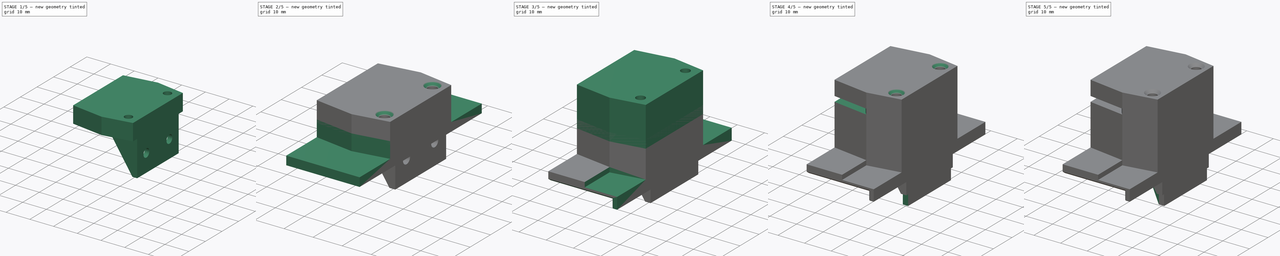
[diagram: build sequence overview — one tinted view per stage of 5, left to right]
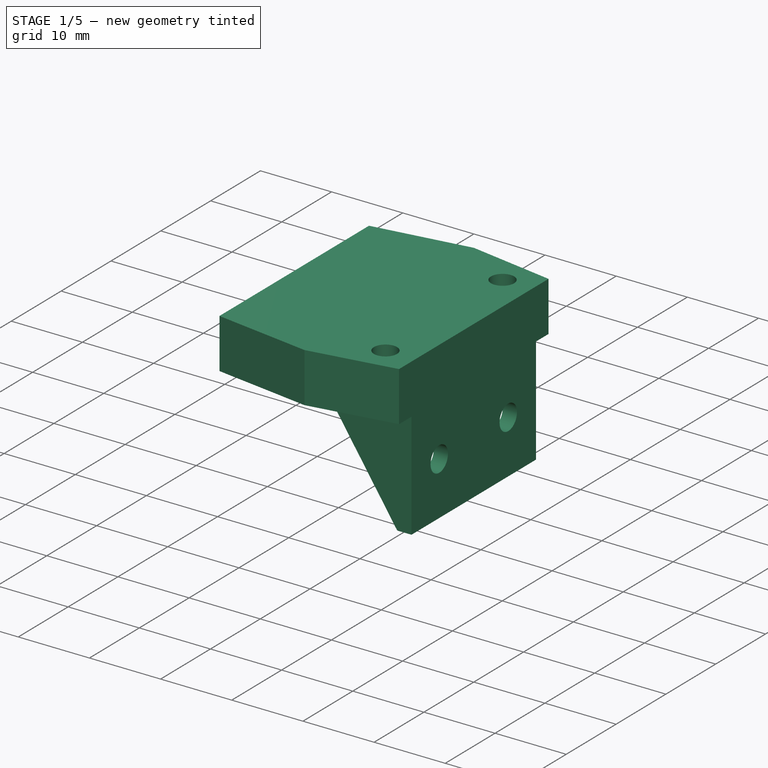
[diagram: stage 1 of 5 — iso view after this stage's code; geometry added in this stage tinted green]
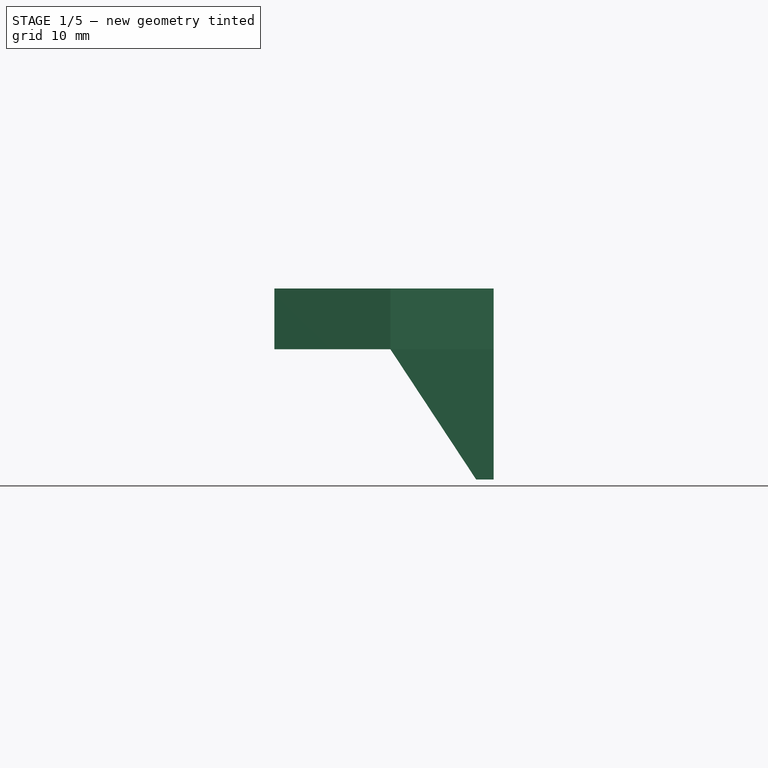
[diagram: stage 1 of 5 — front view after this stage's code; geometry added in this stage tinted green]
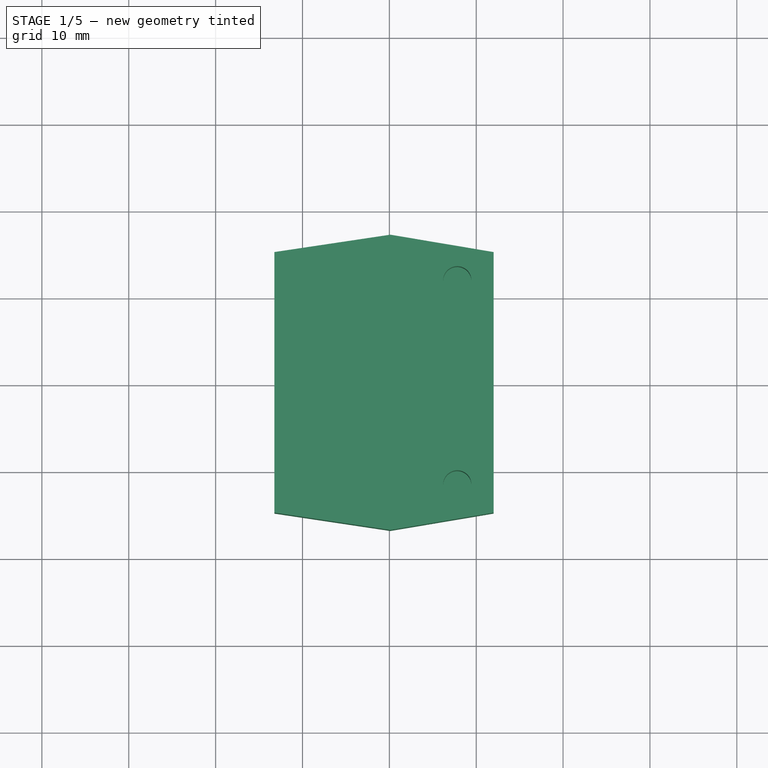
[diagram: stage 1 of 5 — top view after this stage's code; geometry added in this stage tinted green]
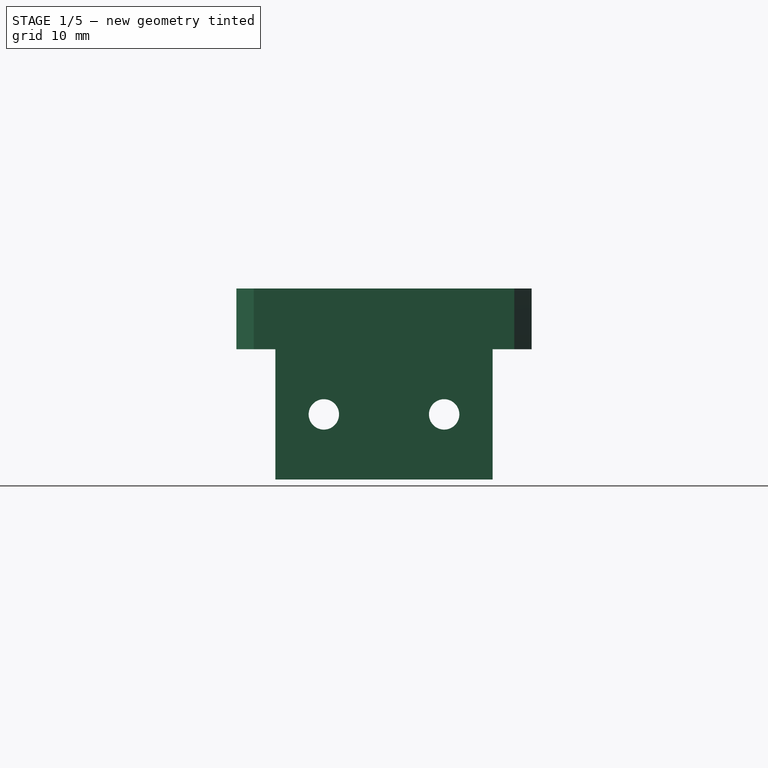
[diagram: stage 1 of 5 — right view after this stage's code; geometry added in this stage tinted green]
FCSTD DOCUMENT  (FreeCAD 0.22R36331 (Git))
Label: ender 3 v3 se kusba mount
License: All rights reserved
LicenseURL: https://en.wikipedia.org/wiki/All_rights_reserved
objects: Sketcher::SketchObject×19, PartDesign::Pad×10, PartDesign::Pocket×9, PartDesign::Chamfer×6, PartDesign::Body×4, PartDesign::Mirrored×2, PartDesign::ShapeBinder×2
note: 77 computed .brp shape members not serialized (recipe doc carries the construction recipe); baked Part::Feature solids carry a one-line shape summary decoded from their .brp

FEATURE [PartDesign::Body] Body  label="SimpleBed"
  Group = -> [ShapeBinder,Sketch025,Pad004,Sketch026,Pad005,ShapeBinder001,Sketch027,Pocket005,Sketch028,Pad006,Sketch029,Pocket006,Chamfer003,Chamfer004]
  Origin = -> Origin
  Placement = pos=(-1e-15,-3,0) rot=(0,0,1;1.5708rad)
  Tip = -> Chamfer004
FEATURE [Sketcher::SketchObject] Sketch030
  AttachmentSupport = -> [YZ_Plane003]
  FullyConstrained = true
  MapMode = 5
  Placement = pos=(0,0,0) rot=(0.57735,0.57735,0.57735;2.0944rad)
  sketch-geometry (5):
    g0: LineSegment StartX=-12.5 StartY=7.5 StartZ=0 EndX=-12.5 EndY=-7.5 EndZ=0
    g1: LineSegment StartX=-12.5 StartY=-7.5 StartZ=0 EndX=12.5 EndY=-7.5 EndZ=0
    g2: LineSegment StartX=12.5 StartY=-7.5 StartZ=0 EndX=12.5 EndY=7.5 EndZ=0
    g3: LineSegment StartX=12.5 StartY=7.5 StartZ=0 EndX=-12.5 EndY=7.5 EndZ=0
    g4: GeomPoint X=0 Y=0 Z=0
  constraints (12):
    c: Coincident(g0,g1)
    c: Coincident(g1,g2)
    c: Coincident(g2,g3)
    c: Coincident(g3,g0)
    c: Vertical(g0)
    c: Vertical(g2)
    c: Horizontal(g1)
    c: Horizontal(g3)
    c: Symmetric(g2,g0,g4)
    c: Coincident(g4,g-1)
    c: DistanceX(g1,g1) = 25
    c: DistanceY(g2,g2) = 15
FEATURE [PartDesign::Pad] Pad007
  Direction = (1,0,0)
  Length = 2
  Length2 = 10
  Placement = pos=(0,0,0) rot=(1,1,1;2.0944rad)
  Profile = -> Sketch030
  ReferenceAxis = -> Sketch030 [N_Axis]
  Suppressed = false
  Type = 0
FEATURE [Sketcher::SketchObject] Sketch033
  AttachmentSupport = -> [Pad007]
  ExternalGeometry = -> [Pad007]
  FullyConstrained = false
  MapMode = 5
  Placement = pos=(-8e-16,2.5e-15,7.5) rot=(0,0,-1;1.5708rad)
  sketch-geometry (6):
    g0: LineSegment StartX=-15 StartY=-23.231 StartZ=0 EndX=15 EndY=-23.231 EndZ=0
    g1: LineSegment StartX=15 StartY=2 StartZ=0 EndX=-15 EndY=2 EndZ=0
    g2: LineSegment StartX=-17 StartY=-9.88 StartZ=0 EndX=-15 EndY=-23.231 EndZ=0
    g3: LineSegment StartX=17 StartY=-9.88 StartZ=0 EndX=15 EndY=-23.231 EndZ=0
    g4: LineSegment StartX=-15 StartY=2 StartZ=0 EndX=-17 EndY=-9.88 EndZ=0
    g5: LineSegment StartX=15 StartY=2 StartZ=0 EndX=17 EndY=-9.88 EndZ=0
  constraints (8):
    c: Coincident(g0,g2)
    c: Distance(g2,g2) = 13.5
    c: Distance(g3,g3) = 13.5
    c: Coincident(g0,g3)
    c: DistanceX(g0,g0) = 30
    c: Symmetric(g0,g0,g-2)
    c: Coincident(g1,g4)
    c: Coincident(g1,g5)
FEATURE [PartDesign::Pad] Pad008
  BaseFeature = -> Pad007
  Direction = (0,0,1)
  Length = 7
  Length2 = 10
  Placement = pos=(0,0,0) rot=(1,1,1;2.0944rad)
  Profile = -> Sketch033
  ReferenceAxis = -> Sketch033 [N_Axis]
  Suppressed = false
  Type = 0
FEATURE [Sketcher::SketchObject] Sketch031
  AttachmentSupport = -> [Pad008]
  FullyConstrained = true
  MapMode = 5
  Placement = pos=(0,0,0) rot=(0.57735,0.57735,-0.57735;4.18879rad)
  sketch-geometry (2):
    g0: Circle CenterX=-6.925 CenterY=0 CenterZ=0 NormalX=0 NormalY=0 NormalZ=1 AngleXU=0 Radius=1.75
    g1: Circle CenterX=6.925 CenterY=0 CenterZ=0 NormalX=0 NormalY=0 NormalZ=1 AngleXU=0 Radius=1.75
  constraints (5):
    c: PointOnObject(g0,g-1)
    c: DistanceX(g0,g1) = 13.85
    c: Equal(g1,g0)
    c: Diameter(g1) = 3.5
    c: Symmetric(g0,g1,g-2)
FEATURE [Sketcher::SketchObject] Sketch032
  AttachmentSupport = -> [Pad008]
  ExternalGeometry = -> [Pad008]
  FullyConstrained = false
  MapMode = 5
  Placement = pos=(-4.8e-15,1.6e-15,14.5) rot=(0,0,-1;1.5708rad)
  sketch-geometry (4):
    g0: Circle CenterX=11.75 CenterY=-2.18 CenterZ=0 NormalX=0 NormalY=0 NormalZ=1 AngleXU=0 Radius=1.625
    g1: Circle CenterX=-11.75 CenterY=-2.18 CenterZ=0 NormalX=0 NormalY=0 NormalZ=1 AngleXU=0 Radius=1.625
    g2: GeomPoint X=0 Y=-2.18 Z=0
    g3: GeomPoint X=0 Y=18 Z=0
  constraints (8):
    c: Equal(g0,g1)
    c: Diameter(g1) = 3.25
    c: DistanceX(g1,g0) = 23.5
    c: Symmetric(g1,g0,g2)
    c: Vertical(g2,g3)
    c: Horizontal(g0,g2)
    c: DistanceY(g0,g-3) = 4.18
    c: PointOnObject(g2,g-2)
FEATURE [PartDesign::Pocket] Pocket007
  BaseFeature = -> Pad008
  Direction = (0,0,-1)
  Length = 6.5
  Length2 = 5
  Placement = pos=(0,0,0) rot=(1,1,1;2.0944rad)
  Profile = -> Sketch032
  ReferenceAxis = -> Sketch032 [N_Axis]
  Suppressed = false
  Type = 0
FEATURE [PartDesign::Pocket] Pocket008
  BaseFeature = -> Pocket007
  Direction = (1,0,0)
  Length = 5
  Length2 = 5
  Placement = pos=(0,0,0) rot=(1,1,1;2.0944rad)
  Profile = -> Sketch031
  ReferenceAxis = -> Sketch031 [N_Axis]
  Suppressed = false
  Type = 0
FEATURE [Sketcher::SketchObject] Sketch034
  AttachmentSupport = -> [Pocket008]
  ExternalGeometry = -> [Sketch033,Pocket008]
  FullyConstrained = true
  MapMode = 5
  Placement = pos=(-2.8e-15,-12.5,1.39e-14) rot=(0.57735,0.57735,-0.57735;2.0944rad)
  sketch-geometry (3):
    g0: LineSegment StartX=-7.5 StartY=-9.88 StartZ=0 EndX=7.5 EndY=1.42e-14 EndZ=0
    g1: LineSegment StartX=-7.5 StartY=1.36e-14 StartZ=0 EndX=-7.5 EndY=-9.88 EndZ=0
    g2: LineSegment StartX=-7.5 StartY=1.36e-14 StartZ=0 EndX=7.5 EndY=1.36e-14 EndZ=0
  constraints (7):
    c: Coincident(g0,g-3)
    c: PointOnObject(g1,g-3)
    c: Coincident(g1,g0)
    c: Coincident(g2,g1)
    c: Horizontal(g2)
    c: Coincident(g-4,g0)
    c: Coincident(g2,g0)
FEATURE [PartDesign::Pad] Pad009
  BaseFeature = -> Pocket008
  Direction = (-1e-16,-1,1e-15)
  Length = 2
  Length2 = 10
  Placement = pos=(0,0,0) rot=(1,1,1;2.0944rad)
  Profile = -> Sketch034
  ReferenceAxis = -> Sketch034 [N_Axis]
  Reversed = true
  Suppressed = false
  Type = 0
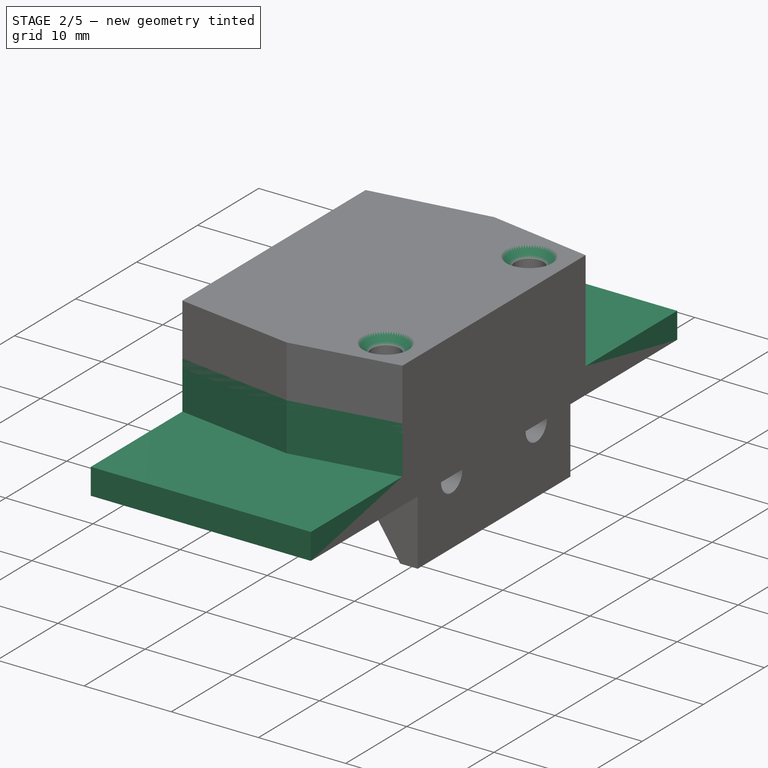
[diagram: stage 2 of 5 — iso view after this stage's code; geometry added in this stage tinted green]
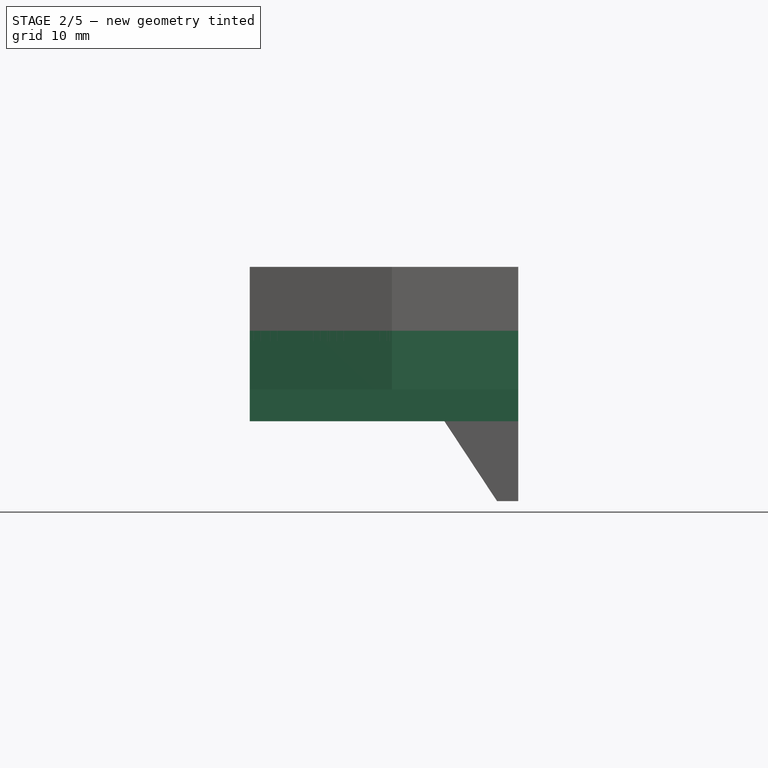
[diagram: stage 2 of 5 — front view after this stage's code; geometry added in this stage tinted green]
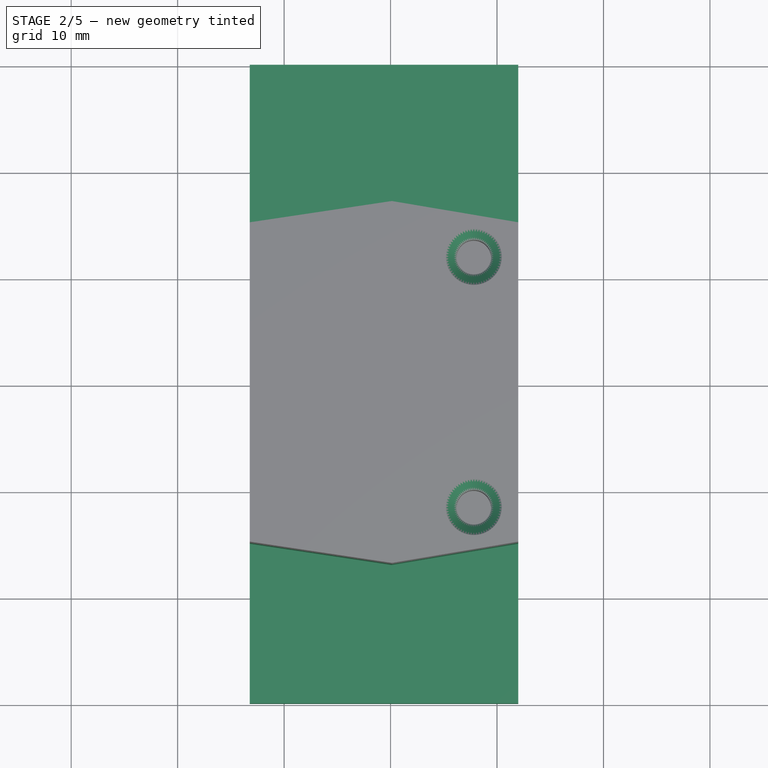
[diagram: stage 2 of 5 — top view after this stage's code; geometry added in this stage tinted green]
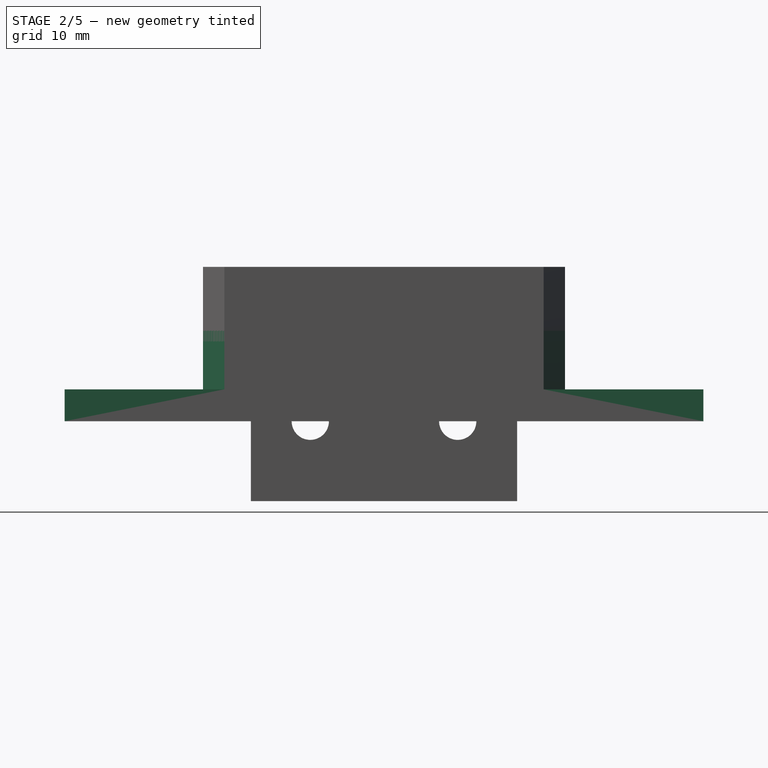
[diagram: stage 2 of 5 — right view after this stage's code; geometry added in this stage tinted green]
FEATURE [PartDesign::Body] Body001  label="Hotend"
  Group = -> [Sketch012,Sketch016,Sketch,Pad,Sketch017,Pad001,Pocket,Pocket001,Sketch018,Pad002,Mirrored,Chamfer]
  Origin = -> Origin001
  Placement = pos=(0,0,0) rot=(1,0,0;3.14159rad)
  Tip = -> Chamfer
FEATURE [Sketcher::SketchObject] Sketch022
  FullyConstrained = false
  MapMode = 5
  Placement = pos=(0,3e-15,11.5) rot=(0,0,-1;1.5708rad)
  sketch-geometry (6):
    g0: LineSegment StartX=-15 StartY=-23.231 StartZ=0 EndX=15 EndY=-23.231 EndZ=0
    g1: LineSegment StartX=15 StartY=2 StartZ=0 EndX=-15 EndY=2 EndZ=0
    g2: LineSegment StartX=-17 StartY=-9.88 StartZ=0 EndX=-15 EndY=-23.231 EndZ=0
    g3: LineSegment StartX=17 StartY=-9.88 StartZ=0 EndX=15 EndY=-23.231 EndZ=0
    g4: LineSegment StartX=-15 StartY=2 StartZ=0 EndX=-17 EndY=-9.88 EndZ=0
    g5: LineSegment StartX=15 StartY=2 StartZ=0 EndX=17 EndY=-9.88 EndZ=0
  constraints (8):
    c: Coincident(g0,g2)
    c: Distance(g2,g2) = 13.5
    c: Distance(g3,g3) = 13.5
    c: Coincident(g0,g3)
    c: DistanceX(g0,g0) = 30
    c: Symmetric(g0,g0,g-2)
    c: Coincident(g1,g4)
    c: Coincident(g1,g5)
FEATURE [PartDesign::Pad] Pad003
  Direction = (0,0,1)
  Length = 14.5
  Length2 = 10
  Placement = pos=(0,3e-15,11.5) rot=(0,0,-1;1.5708rad)
  Profile = -> Sketch022
  ReferenceAxis = -> Sketch022 [N_Axis]
  Suppressed = false
  Type = 0
FEATURE [PartDesign::Body] Body002  label="Bed"
  Group = -> [Sketch021,Sketch022,Pad003,Pocket002,Sketch023,Pocket003,Chamfer001,Chamfer002,Sketch024,Pocket004]
  Origin = -> Origin002
  Tip = -> Pocket004
FEATURE [PartDesign::ShapeBinder] ShapeBinder
  Support = -> [Pad003]
  TraceSupport = false
FEATURE [Sketcher::SketchObject] Sketch025
  AttachmentSupport = -> [XY_Plane]
  ExternalGeometry = -> [ShapeBinder]
  FullyConstrained = true
  MapMode = 5
  sketch-geometry (4):
    g0: LineSegment StartX=-23.231 StartY=30 StartZ=0 EndX=-23.231 EndY=-30 EndZ=0
    g1: LineSegment StartX=-23.231 StartY=-30 StartZ=0 EndX=2 EndY=-30 EndZ=0
    g2: LineSegment StartX=2 StartY=-30 StartZ=0 EndX=2 EndY=30 EndZ=0
    g3: LineSegment StartX=2 StartY=30 StartZ=0 EndX=-23.231 EndY=30 EndZ=0
  constraints (11):
    c: Coincident(g0,g1)
    c: Coincident(g1,g2)
    c: Coincident(g2,g3)
    c: Coincident(g3,g0)
    c: Vertical(g2)
    c: Horizontal(g1)
    c: Horizontal(g3)
    c: DistanceY(g2,g2) = 60
    c: PointOnObject(g-3,g0)
    c: PointOnObject(g-4,g2)
    c: Symmetric(g0,g0,g-1)
FEATURE [PartDesign::Pad] Pad004
  Direction = (0,0,1)
  Length = 3
  Length2 = 10
  Profile = -> Sketch025
  ReferenceAxis = -> Sketch025 [N_Axis]
  Suppressed = false
  Type = 0
FEATURE [Sketcher::SketchObject] Sketch026
  AttachmentSupport = -> [Pad004]
  ExternalGeometry = -> [ShapeBinder]
  FullyConstrained = true
  MapMode = 5
  Placement = pos=(0,0,3) rot=(0,0,1;0rad)
  sketch-geometry (6):
    g0: LineSegment StartX=-23.231 StartY=15 StartZ=0 EndX=-9.88 EndY=17 EndZ=0
    g1: LineSegment StartX=-9.88 StartY=17 StartZ=0 EndX=2 EndY=15 EndZ=0
    g2: LineSegment StartX=2 StartY=15 StartZ=0 EndX=2 EndY=-15 EndZ=0
    g3: LineSegment StartX=2 StartY=-15 StartZ=0 EndX=-9.88 EndY=-17 EndZ=0
    g4: LineSegment StartX=-9.88 StartY=-17 StartZ=0 EndX=-23.231 EndY=-15 EndZ=0
    g5: LineSegment StartX=-23.231 StartY=-15 StartZ=0 EndX=-23.231 EndY=15 EndZ=0
  constraints (12):
    c: Coincident(g-6,g0)
    c: Coincident(g0,g-6)
    c: Coincident(g0,g1)
    c: Coincident(g1,g-5)
    c: Coincident(g1,g2)
    c: Coincident(g2,g-8)
    c: Coincident(g2,g3)
    c: Coincident(g3,g-8)
    c: Coincident(g3,g4)
    c: Coincident(g4,g-7)
    c: Coincident(g4,g5)
    c: Coincident(g5,g0)
FEATURE [PartDesign::Pad] Pad005
  BaseFeature = -> Pad004
  Direction = (0,0,1)
  Length = 5.5
  Length2 = 10
  Profile = -> Sketch026
  ReferenceAxis = -> Sketch026 [N_Axis]
  Suppressed = false
  Type = 0
FEATURE [PartDesign::ShapeBinder] ShapeBinder001
  Support = -> [Sketch021]
  TraceSupport = false
FEATURE [Sketcher::SketchObject] Sketch027
  AttachmentSupport = -> [Pad005]
  ExternalGeometry = -> [ShapeBinder001]
  FullyConstrained = false
  MapMode = 5
  Placement = pos=(0,0,8.5) rot=(0,0,1;0rad)
  sketch-geometry (2):
    g0: Circle CenterX=-2.18 CenterY=11.75 CenterZ=0 NormalX=0 NormalY=0 NormalZ=1 AngleXU=0 Radius=1.625
    g1: Circle CenterX=-2.18 CenterY=-11.75 CenterZ=0 NormalX=0 NormalY=0 NormalZ=1 AngleXU=0 Radius=1.625
FEATURE [PartDesign::Pocket] Pocket005
  BaseFeature = -> Pad005
  Direction = (0,0,-1)
  Length = 6.5
  Length2 = 5
  Profile = -> Sketch027
  ReferenceAxis = -> Sketch027 [N_Axis]
  Suppressed = false
  Type = 0
FEATURE [PartDesign::Mirrored] Mirrored001
  BaseFeature = -> Pad009
  MirrorPlane = -> XZ_Plane003
  Originals = -> [Pad009]
  Placement = pos=(0,0,0) rot=(1,1,1;2.0944rad)
  Suppressed = false
FEATURE [PartDesign::Chamfer] Chamfer005
  Angle = 45
  Base = -> Mirrored001 [Edge34,Edge33]
  BaseFeature = -> Mirrored001
  ChamferType = 0
  FlipDirection = false
  Placement = pos=(0,0,0) rot=(1,1,1;2.0944rad)
  Size = 1
  Size2 = 1
  SupportTransform = false
  Suppressed = false
  UseAllEdges = false
FEATURE [PartDesign::Body] Body003  label="Ender3V1Hotend"
  Group = -> [Sketch031,Sketch032,Sketch030,Pad007,Sketch033,Pad008,Pocket007,Pocket008,Sketch034,Pad009,Mirrored001,Chamfer005]
  Origin = -> Origin003
  Placement = pos=(0,0,0) rot=(1,0,0;3.14159rad)
  Tip = -> Chamfer005
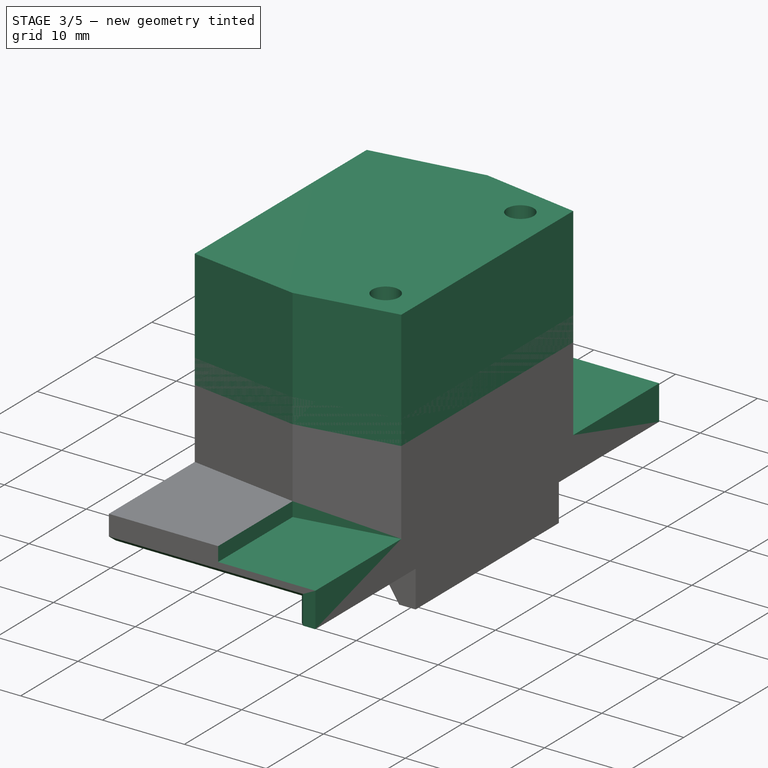
[diagram: stage 3 of 5 — iso view after this stage's code; geometry added in this stage tinted green]
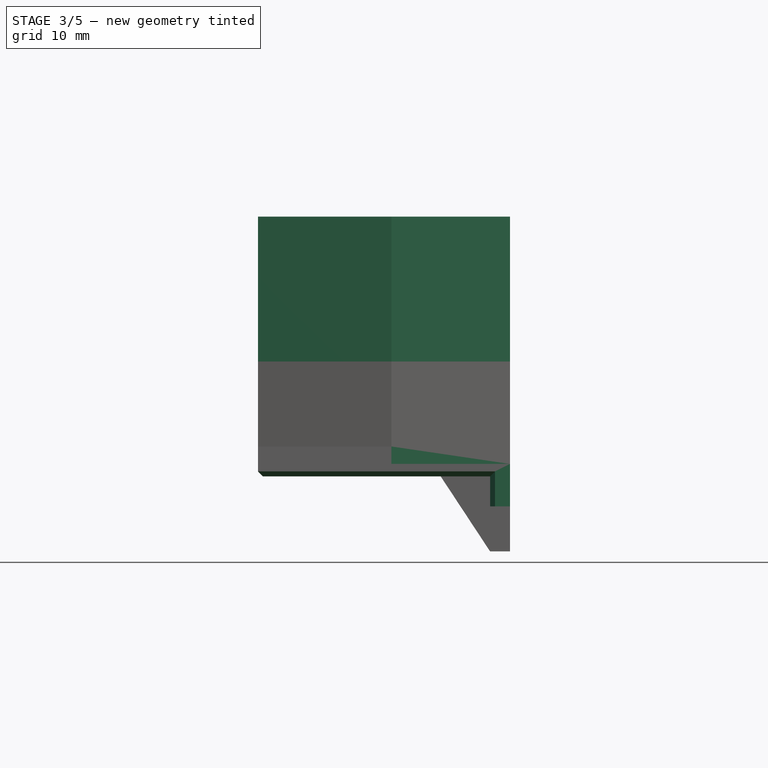
[diagram: stage 3 of 5 — front view after this stage's code; geometry added in this stage tinted green]
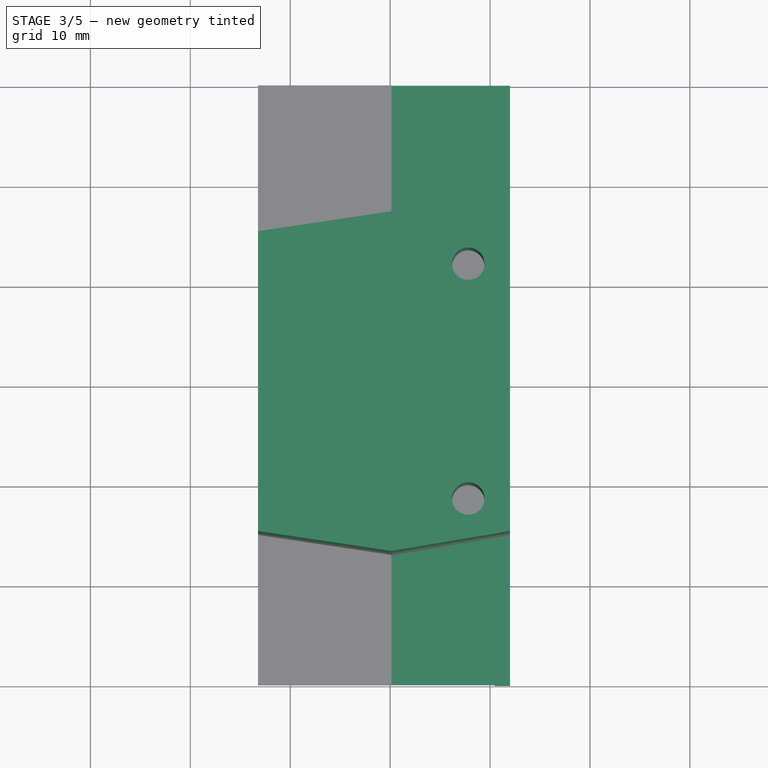
[diagram: stage 3 of 5 — top view after this stage's code; geometry added in this stage tinted green]
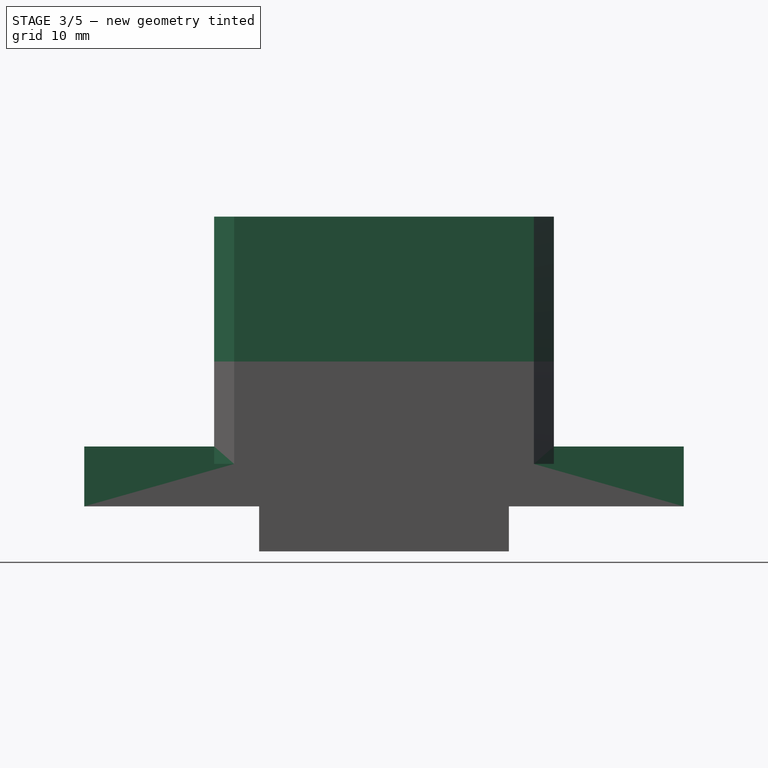
[diagram: stage 3 of 5 — right view after this stage's code; geometry added in this stage tinted green]
FEATURE [Sketcher::SketchObject] Sketch021
  AttachmentSupport = -> [Pad003]
  ExternalGeometry = -> [Pad003]
  FullyConstrained = false
  MapMode = 5
  Placement = pos=(0,3e-15,26) rot=(0,0,-1;1.5708rad)
  sketch-geometry (4):
    g0: Circle CenterX=11.75 CenterY=-2.18 CenterZ=0 NormalX=0 NormalY=0 NormalZ=1 AngleXU=0 Radius=1.625
    g1: Circle CenterX=-11.75 CenterY=-2.18 CenterZ=0 NormalX=0 NormalY=0 NormalZ=1 AngleXU=0 Radius=1.625
    g2: GeomPoint X=0 Y=-2.18 Z=0
    g3: GeomPoint X=0 Y=18 Z=0
  constraints (8):
    c: Equal(g0,g1)
    c: Diameter(g1) = 3.25
    c: DistanceX(g1,g0) = 23.5
    c: Symmetric(g1,g0,g2)
    c: Vertical(g2,g3)
    c: Horizontal(g0,g2)
    c: PointOnObject(g2,g-2)
    c: DistanceY(g1,g-3) = 4.18
FEATURE [PartDesign::Pocket] Pocket002
  BaseFeature = -> Pad003
  Direction = (0,0,-1)
  Length = 5
  Length2 = 5
  Placement = pos=(0,3e-15,11.5) rot=(0,0,-1;1.5708rad)
  Profile = -> Sketch021
  ReferenceAxis = -> Sketch021 [N_Axis]
  Suppressed = false
  Type = 1
FEATURE [Sketcher::SketchObject] Sketch028
  AttachmentSupport = -> [Pocket005]
  ExternalGeometry = -> [Pocket005]
  FullyConstrained = true
  MapMode = 5
  Placement = pos=(0,0,0) rot=(1,0,0;3.14159rad)
  sketch-geometry (4):
    g0: LineSegment StartX=2 StartY=30 StartZ=0 EndX=0 EndY=30 EndZ=0
    g1: LineSegment StartX=0 StartY=30 StartZ=0 EndX=0 EndY=-30 EndZ=0
    g2: LineSegment StartX=0 StartY=-30 StartZ=0 EndX=2 EndY=-30 EndZ=0
    g3: LineSegment StartX=2 StartY=-30 StartZ=0 EndX=2 EndY=30 EndZ=0
  constraints (10):
    c: Coincident(g0,g1)
    c: Coincident(g1,g2)
    c: Coincident(g2,g3)
    c: Coincident(g3,g0)
    c: Horizontal(g0)
    c: Horizontal(g2)
    c: Vertical(g1)
    c: Coincident(g0,g-3)
    c: PointOnObject(g1,g-2)
    c: Coincident(g2,g-3)
FEATURE [PartDesign::Pad] Pad006
  BaseFeature = -> Pocket005
  Direction = (0,0,-1)
  Length = 3
  Length2 = 10
  Profile = -> Sketch028
  ReferenceAxis = -> Sketch028 [N_Axis]
  Refine = true
  Suppressed = false
  Type = 0
FEATURE [Sketcher::SketchObject] Sketch029
  AttachmentSupport = -> [Pad006]
  ExternalGeometry = -> [Pad006]
  FullyConstrained = true
  MapMode = 5
  Placement = pos=(0,0,3) rot=(0,0,1;0rad)
  sketch-geometry (8):
    g0: LineSegment StartX=2 StartY=30 StartZ=0 EndX=-9.88 EndY=30 EndZ=0
    g1: LineSegment StartX=-9.88 StartY=30 StartZ=0 EndX=-9.88 EndY=17 EndZ=0
    g2: LineSegment StartX=2 StartY=15 StartZ=0 EndX=2 EndY=30 EndZ=0
    g3: LineSegment StartX=2 StartY=-30 StartZ=0 EndX=2 EndY=-15 EndZ=0
    g4: LineSegment StartX=-9.88 StartY=-17 StartZ=0 EndX=-9.88 EndY=-30 EndZ=0
    g5: LineSegment StartX=-9.88 StartY=-30 StartZ=0 EndX=2 EndY=-30 EndZ=0
    g6: LineSegment StartX=-9.88 StartY=17 StartZ=0 EndX=2 EndY=15 EndZ=0
    g7: LineSegment StartX=-9.88 StartY=-17 StartZ=0 EndX=2 EndY=-15 EndZ=0
  constraints (18):
    c: Coincident(g0,g1)
    c: Coincident(g2,g0)
    c: Horizontal(g0)
    c: Vertical(g1)
    c: Coincident(g0,g-6)
    c: Coincident(g4,g5)
    c: Coincident(g5,g3)
    c: Vertical(g4)
    c: Horizontal(g5)
    c: Coincident(g3,g-5)
    c: Coincident(g6,g-8)
    c: Coincident(g6,g-8)
    c: Coincident(g6,g1)
    c: Coincident(g6,g2)
    c: Coincident(g3,g-7)
    c: Coincident(g4,g-7)
    c: Coincident(g7,g4)
    c: Coincident(g7,g3)
FEATURE [PartDesign::Pocket] Pocket006
  BaseFeature = -> Pad006
  Direction = (0,0,-1)
  Length = 1.75
  Length2 = 5
  Profile = -> Sketch029
  ReferenceAxis = -> Sketch029 [N_Axis]
  Refine = true
  Suppressed = false
  Type = 0
FEATURE [PartDesign::Chamfer] Chamfer003
  Angle = 45
  Base = -> Pocket006 [Edge10,Edge12,Edge1,Edge4,Edge3]
  BaseFeature = -> Pocket006
  ChamferType = 0
  FlipDirection = false
  Size = 0.5
  Size2 = 1
  SupportTransform = false
  Suppressed = false
  UseAllEdges = false
FEATURE [PartDesign::Chamfer] Chamfer004
  Angle = 45
  Base = -> Chamfer003 [Edge57,Edge58]
  BaseFeature = -> Chamfer003
  ChamferType = 0
  FlipDirection = false
  Size = 1
  Size2 = 1
  SupportTransform = false
  Suppressed = false
  UseAllEdges = false
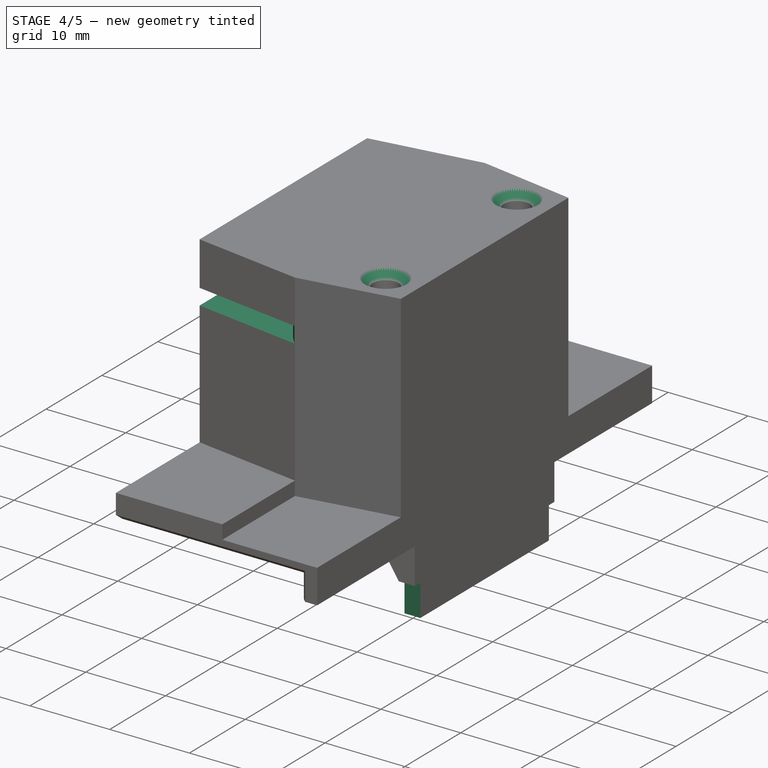
[diagram: stage 4 of 5 — iso view after this stage's code; geometry added in this stage tinted green]
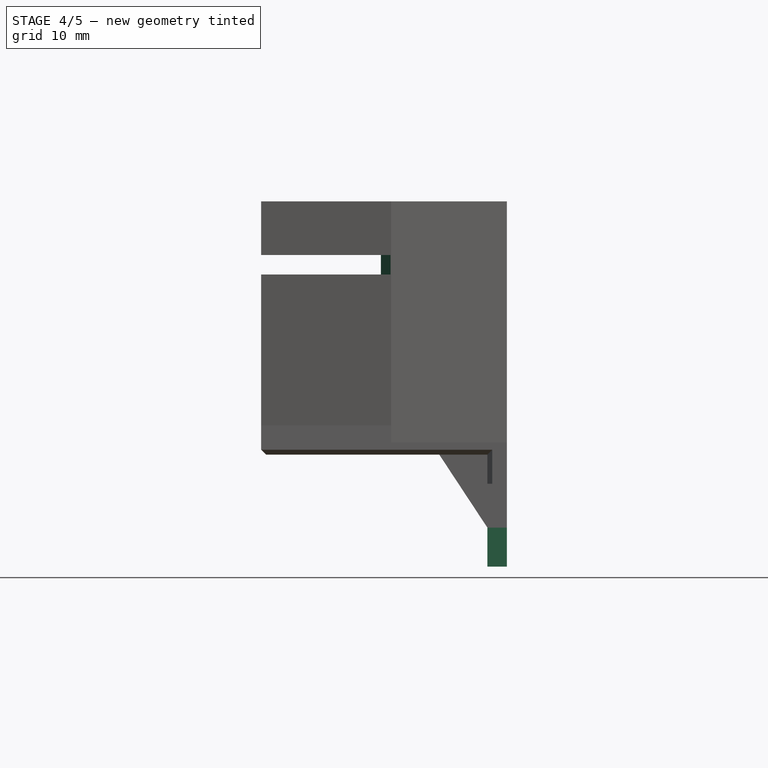
[diagram: stage 4 of 5 — front view after this stage's code; geometry added in this stage tinted green]
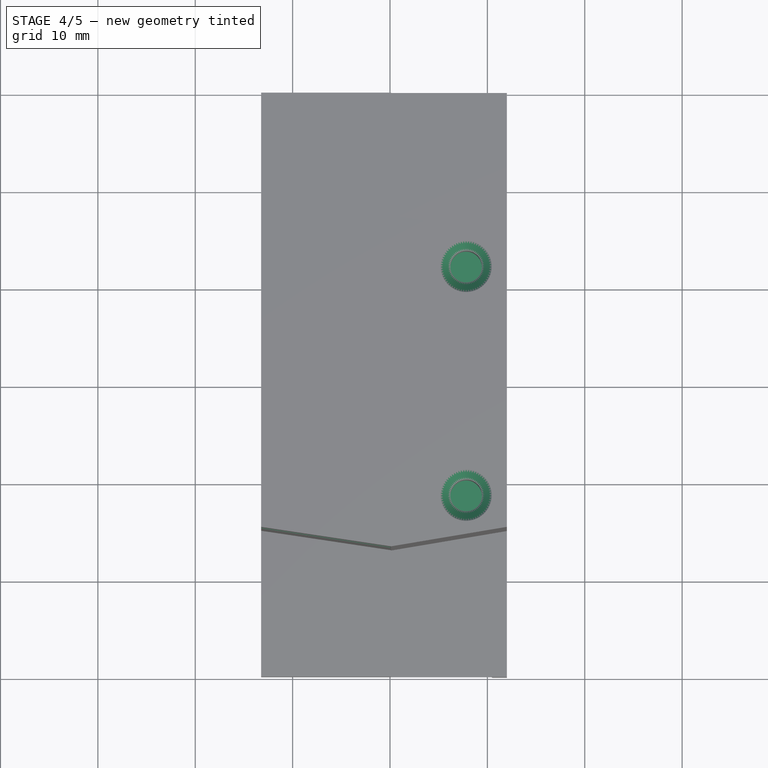
[diagram: stage 4 of 5 — top view after this stage's code; geometry added in this stage tinted green]
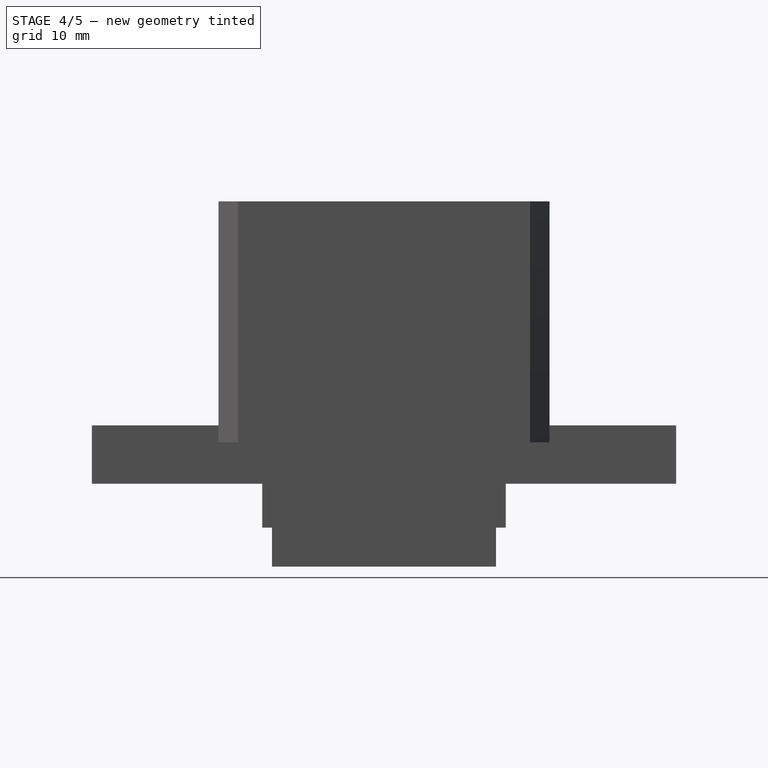
[diagram: stage 4 of 5 — right view after this stage's code; geometry added in this stage tinted green]
FEATURE [Sketcher::SketchObject] Sketch
  AttachmentSupport = -> [YZ_Plane001]
  FullyConstrained = true
  MapMode = 5
  Placement = pos=(0,0,0) rot=(0.57735,0.57735,0.57735;2.0944rad)
  sketch-geometry (5):
    g0: LineSegment StartX=-11.5 StartY=11.5 StartZ=0 EndX=-11.5 EndY=-11.5 EndZ=0
    g1: LineSegment StartX=-11.5 StartY=-11.5 StartZ=0 EndX=11.5 EndY=-11.5 EndZ=0
    g2: LineSegment StartX=11.5 StartY=-11.5 StartZ=0 EndX=11.5 EndY=11.5 EndZ=0
    g3: LineSegment StartX=11.5 StartY=11.5 StartZ=0 EndX=-11.5 EndY=11.5 EndZ=0
    g4: GeomPoint X=0 Y=0 Z=0
  constraints (12):
    c: Coincident(g0,g1)
    c: Coincident(g1,g2)
    c: Coincident(g2,g3)
    c: Coincident(g3,g0)
    c: Vertical(g0)
    c: Vertical(g2)
    c: Horizontal(g1)
    c: Horizontal(g3)
    c: Symmetric(g2,g0,g4)
    c: Coincident(g4,g-1)
    c: DistanceX(g1,g1) = 23
    c: Equal(g2,g1)
FEATURE [PartDesign::Pad] Pad
  Direction = (1,0,0)
  Length = 2
  Length2 = 10
  Placement = pos=(0,0,0) rot=(0.57735,0.57735,0.57735;2.0944rad)
  Profile = -> Sketch
  ReferenceAxis = -> Sketch [N_Axis]
  Suppressed = false
  Type = 0
FEATURE [Sketcher::SketchObject] Sketch017
  AttachmentSupport = -> [Pad]
  ExternalGeometry = -> [Pad]
  FullyConstrained = false
  MapMode = 5
  Placement = pos=(0,2.5e-15,11.5) rot=(0,0,-1;1.5708rad)
  sketch-geometry (6):
    g0: LineSegment StartX=-15 StartY=-23.231 StartZ=0 EndX=15 EndY=-23.231 EndZ=0
    g1: LineSegment StartX=15 StartY=2 StartZ=0 EndX=-15 EndY=2 EndZ=0
    g2: LineSegment StartX=-17 StartY=-9.88 StartZ=0 EndX=-15 EndY=-23.231 EndZ=0
    g3: LineSegment StartX=17 StartY=-9.88 StartZ=0 EndX=15 EndY=-23.231 EndZ=0
    g4: LineSegment StartX=-15 StartY=2 StartZ=0 EndX=-17 EndY=-9.88 EndZ=0
    g5: LineSegment StartX=15 StartY=2 StartZ=0 EndX=17 EndY=-9.88 EndZ=0
  constraints (8):
    c: Coincident(g0,g2)
    c: Distance(g2,g2) = 13.5
    c: Distance(g3,g3) = 13.5
    c: Coincident(g0,g3)
    c: DistanceX(g0,g0) = 30
    c: Symmetric(g0,g0,g-2)
    c: Coincident(g1,g4)
    c: Coincident(g1,g5)
FEATURE [PartDesign::Pad] Pad001
  BaseFeature = -> Pad
  Direction = (0,0,1)
  Length = 7
  Length2 = 10
  Placement = pos=(0,0,0) rot=(0.57735,0.57735,0.57735;2.0944rad)
  Profile = -> Sketch017
  ReferenceAxis = -> Sketch017 [N_Axis]
  Suppressed = false
  Type = 0
FEATURE [Sketcher::SketchObject] Sketch023
  AttachmentSupport = -> [Pocket002]
  ExternalGeometry = -> [Pocket002]
  FullyConstrained = true
  MapMode = 5
  Placement = pos=(-23.231,4e-16,11.5) rot=(0.57735,-0.57735,-0.57735;2.0944rad)
  sketch-geometry (4):
    g0: LineSegment StartX=-17 StartY=9 StartZ=0 EndX=-17 EndY=4 EndZ=0
    g1: LineSegment StartX=-17 StartY=4 StartZ=0 EndX=17 EndY=4 EndZ=0
    g2: LineSegment StartX=17 StartY=4 StartZ=0 EndX=17 EndY=9 EndZ=0
    g3: LineSegment StartX=17 StartY=9 StartZ=0 EndX=-17 EndY=9 EndZ=0
  constraints (12):
    c: Coincident(g0,g1)
    c: Coincident(g1,g2)
    c: Coincident(g2,g3)
    c: Coincident(g3,g0)
    c: Vertical(g0)
    c: Vertical(g2)
    c: Horizontal(g1)
    c: Horizontal(g3)
    c: PointOnObject(g0,g-6)
    c: PointOnObject(g1,g-5)
    c: DistanceY(g2,g2) = 5
    c: DistanceY(g0,g-6) = 5.5
FEATURE [PartDesign::Pocket] Pocket003
  BaseFeature = -> Pocket002
  Direction = (1,0,0)
  Length = 12.3
  Length2 = 5
  Placement = pos=(0,3e-15,11.5) rot=(0,0,-1;1.5708rad)
  Profile = -> Sketch023
  ReferenceAxis = -> Sketch023 [N_Axis]
  Suppressed = false
  Type = 0
FEATURE [PartDesign::Chamfer] Chamfer001
  Angle = 45
  Base = -> Pocket003 [Edge19,Edge20]
  BaseFeature = -> Pocket003
  ChamferType = 0
  FlipDirection = false
  Placement = pos=(0,3e-15,11.5) rot=(0,0,-1;1.5708rad)
  Size = 1
  Size2 = 1
  SupportTransform = false
  Suppressed = false
  UseAllEdges = false
FEATURE [PartDesign::Chamfer] Chamfer002
  Angle = 45
  Base = -> Chamfer001 [Edge27,Edge21]
  BaseFeature = -> Chamfer001
  ChamferType = 0
  FlipDirection = false
  Placement = pos=(0,3e-15,11.5) rot=(0,0,-1;1.5708rad)
  Size = 1
  Size2 = 1
  SupportTransform = false
  Suppressed = false
  UseAllEdges = false
FEATURE [Sketcher::SketchObject] Sketch024
  AttachmentSupport = -> [Chamfer002]
  ExternalGeometry = -> [Chamfer002]
  FullyConstrained = true
  MapMode = 5
  Placement = pos=(0,3e-15,11.5) rot=(0.707107,-0.707107,0;3.14159rad)
  sketch-geometry (2):
    g0: Circle CenterX=-11.75 CenterY=2.18 CenterZ=0 NormalX=0 NormalY=0 NormalZ=1 AngleXU=0 Radius=2.5
    g1: Circle CenterX=11.75 CenterY=2.18 CenterZ=0 NormalX=0 NormalY=0 NormalZ=1 AngleXU=0 Radius=2.5
  constraints (4):
    c: Coincident(g0,g-3)
    c: Coincident(g1,g-4)
    c: Equal(g1,g0)
    c: Diameter(g0) = 5
FEATURE [PartDesign::Pocket] Pocket004
  BaseFeature = -> Chamfer002
  Direction = (0,0,1)
  Length = 8
  Length2 = 5
  Placement = pos=(0,3e-15,11.5) rot=(0,0,-1;1.5708rad)
  Profile = -> Sketch024
  ReferenceAxis = -> Sketch024 [N_Axis]
  Suppressed = false
  Type = 0
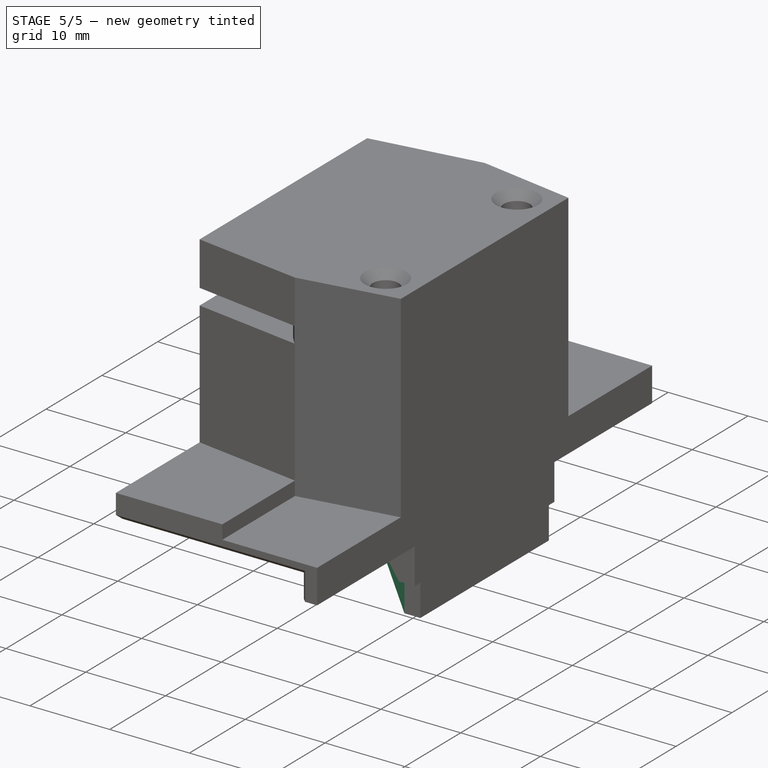
[diagram: stage 5 of 5 — iso view after this stage's code; geometry added in this stage tinted green]
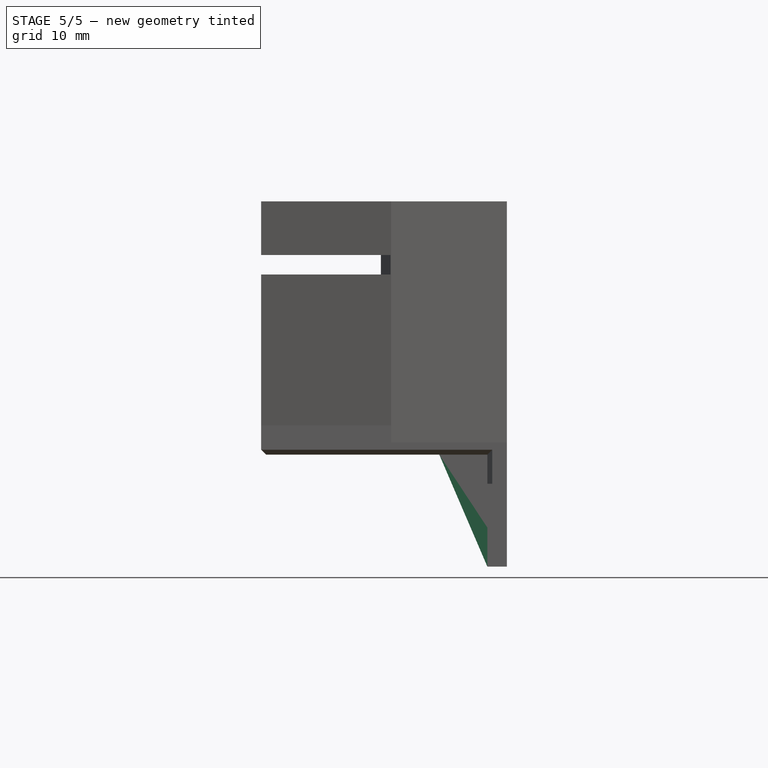
[diagram: stage 5 of 5 — front view after this stage's code; geometry added in this stage tinted green]
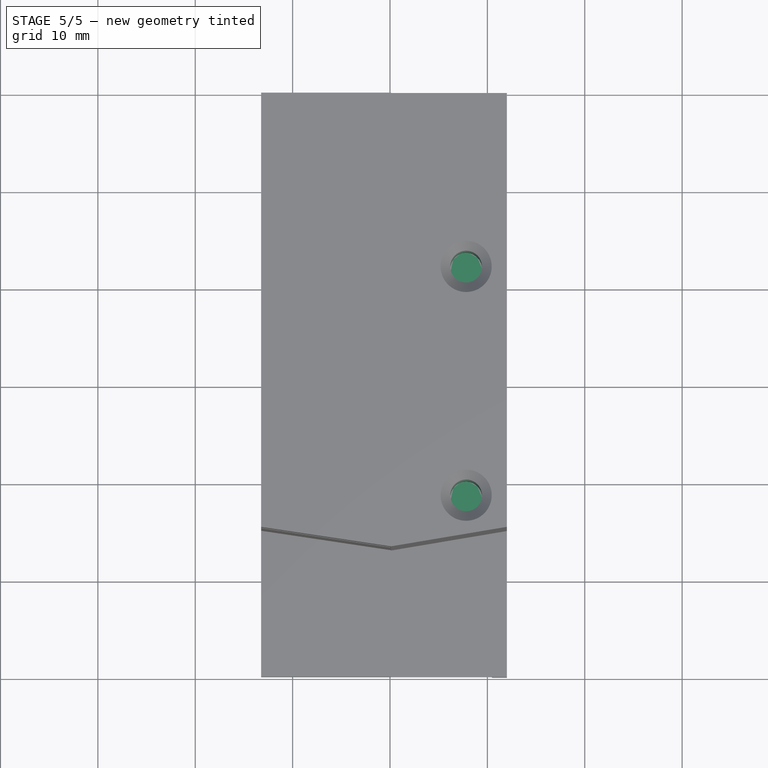
[diagram: stage 5 of 5 — top view after this stage's code; geometry added in this stage tinted green]
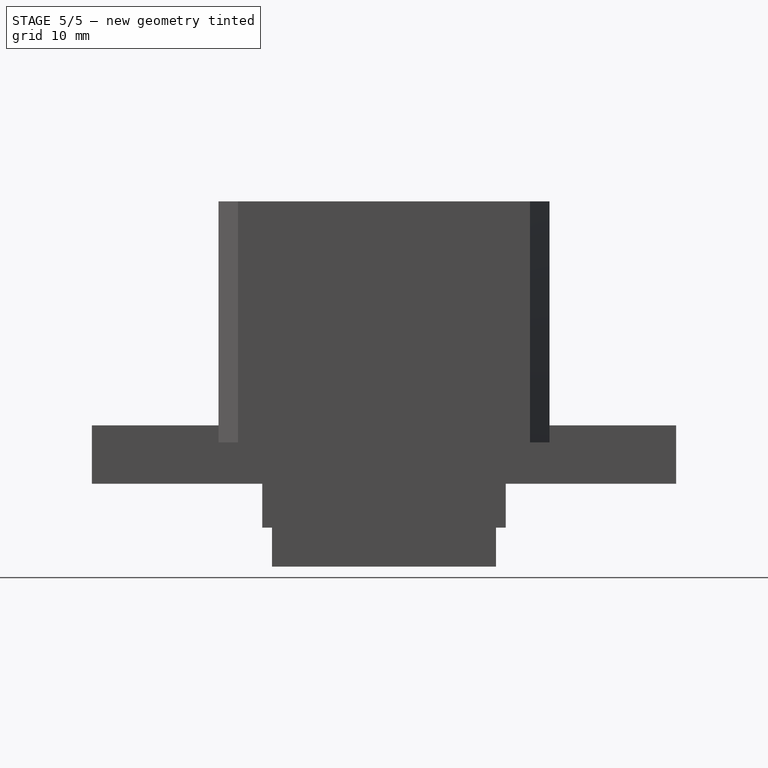
[diagram: stage 5 of 5 — right view after this stage's code; geometry added in this stage tinted green]
FEATURE [Sketcher::SketchObject] Sketch012
  AttachmentSupport = -> [Pad001]
  FullyConstrained = true
  MapMode = 5
  Placement = pos=(0,0,0) rot=(0.57735,0.57735,-0.57735;4.18879rad)
  sketch-geometry (2):
    g0: Circle CenterX=-4.75 CenterY=-4.735 CenterZ=0 NormalX=0 NormalY=0 NormalZ=1 AngleXU=0 Radius=1.75
    g1: Circle CenterX=4.75 CenterY=4.735 CenterZ=0 NormalX=0 NormalY=0 NormalZ=1 AngleXU=0 Radius=1.75
  constraints (5):
    c: Diameter(g0) = 3.5
    c: Equal(g1,g0)
    c: DistanceX(g0,g1) = 9.5
    c: DistanceY(g0,g1) = 9.47
    c: Symmetric(g0,g1,g-1)
FEATURE [Sketcher::SketchObject] Sketch016
  AttachmentSupport = -> [Pad001]
  ExternalGeometry = -> [Pad001]
  FullyConstrained = false
  MapMode = 5
  Placement = pos=(0,2.1e-15,18.5) rot=(0,0,-1;1.5708rad)
  sketch-geometry (4):
    g0: Circle CenterX=11.75 CenterY=-2.18 CenterZ=0 NormalX=0 NormalY=0 NormalZ=1 AngleXU=0 Radius=1.625
    g1: Circle CenterX=-11.75 CenterY=-2.18 CenterZ=0 NormalX=0 NormalY=0 NormalZ=1 AngleXU=0 Radius=1.625
    g2: GeomPoint X=0 Y=-2.18 Z=0
    g3: GeomPoint X=0 Y=18 Z=0
  constraints (8):
    c: Equal(g0,g1)
    c: Diameter(g1) = 3.25
    c: DistanceX(g1,g0) = 23.5
    c: Symmetric(g1,g0,g2)
    c: Vertical(g2,g3)
    c: Horizontal(g0,g2)
    c: DistanceY(g0,g-3) = 4.18
    c: PointOnObject(g2,g-2)
FEATURE [PartDesign::Pocket] Pocket
  BaseFeature = -> Pad001
  Direction = (0,0,-1)
  Length = 6.5
  Length2 = 5
  Placement = pos=(0,0,0) rot=(0.57735,0.57735,0.57735;2.0944rad)
  Profile = -> Sketch016
  ReferenceAxis = -> Sketch016 [N_Axis]
  Suppressed = false
  Type = 0
FEATURE [PartDesign::Pocket] Pocket001
  BaseFeature = -> Pocket
  Direction = (1,0,0)
  Length = 5
  Length2 = 5
  Placement = pos=(0,0,0) rot=(0.57735,0.57735,0.57735;2.0944rad)
  Profile = -> Sketch012
  ReferenceAxis = -> Sketch012 [N_Axis]
  Suppressed = false
  Type = 0
FEATURE [Sketcher::SketchObject] Sketch018
  AttachmentSupport = -> [Pocket001]
  ExternalGeometry = -> [Sketch017,Pocket001]
  FullyConstrained = true
  MapMode = 5
  Placement = pos=(-6.4e-15,-11.5,0) rot=(0.57735,0.57735,-0.57735;2.0944rad)
  sketch-geometry (3):
    g0: LineSegment StartX=-11.5 StartY=-9.88 StartZ=0 EndX=11.5 EndY=1.8e-15 EndZ=0
    g1: LineSegment StartX=-11.5 StartY=1.8e-15 StartZ=0 EndX=-11.5 EndY=-9.88 EndZ=0
    g2: LineSegment StartX=-11.5 StartY=1.8e-15 StartZ=0 EndX=11.5 EndY=1.8e-15 EndZ=0
  constraints (7):
    c: Coincident(g0,g-3)
    c: PointOnObject(g1,g-3)
    c: Coincident(g1,g0)
    c: Coincident(g2,g1)
    c: Horizontal(g2)
    c: Coincident(g-4,g0)
    c: Coincident(g2,g0)
FEATURE [PartDesign::Pad] Pad002
  BaseFeature = -> Pocket001
  Direction = (0,-1,0)
  Length = 2
  Length2 = 10
  Placement = pos=(0,0,0) rot=(0.57735,0.57735,0.57735;2.0944rad)
  Profile = -> Sketch018
  ReferenceAxis = -> Sketch018 [N_Axis]
  Reversed = true
  Suppressed = false
  Type = 0
FEATURE [PartDesign::Mirrored] Mirrored
  BaseFeature = -> Pad002
  MirrorPlane = -> XZ_Plane001
  Originals = -> [Pad002]
  Placement = pos=(0,0,0) rot=(0.57735,0.57735,0.57735;2.0944rad)
  Suppressed = false
FEATURE [PartDesign::Chamfer] Chamfer
  Angle = 45
  Base = -> Mirrored [Edge34,Edge33]
  BaseFeature = -> Mirrored
  ChamferType = 0
  FlipDirection = false
  Placement = pos=(0,0,0) rot=(0.57735,0.57735,0.57735;2.0944rad)
  Size = 1
  Size2 = 1
  SupportTransform = false
  Suppressed = false
  UseAllEdges = false
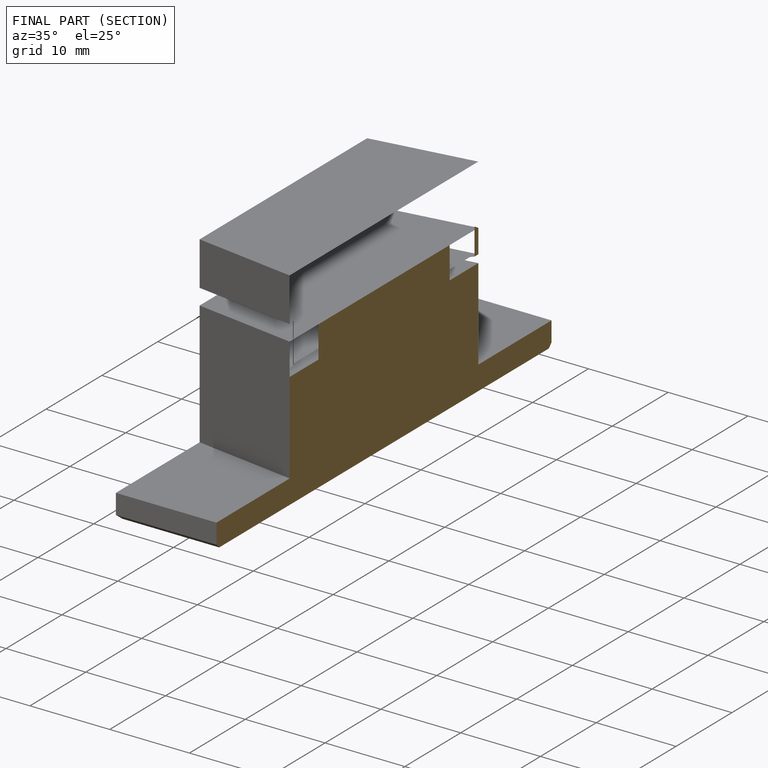
[diagram: finished part — half-section view (interior)]
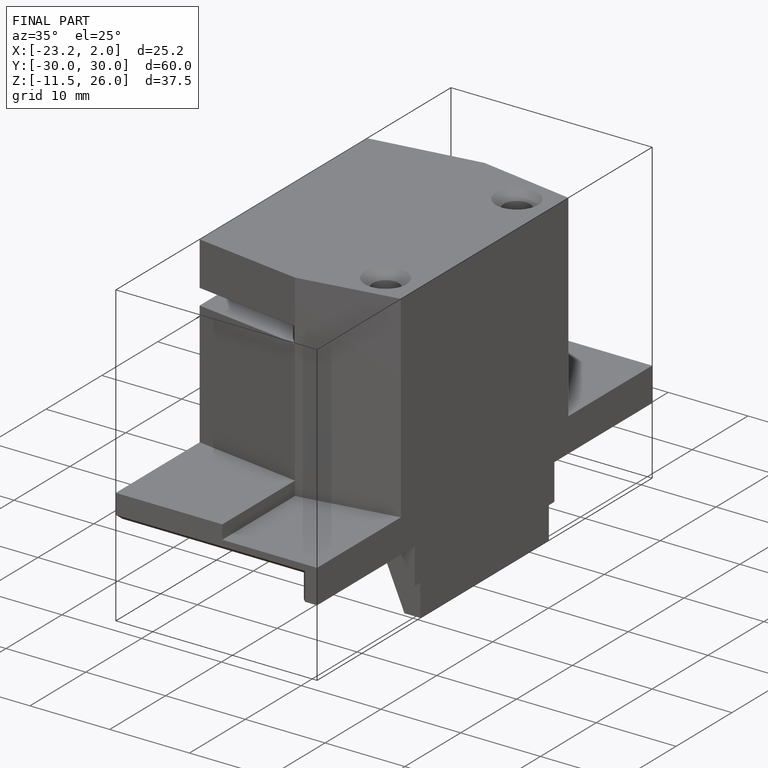
[diagram: finished part — iso view with bounding-box wireframe]
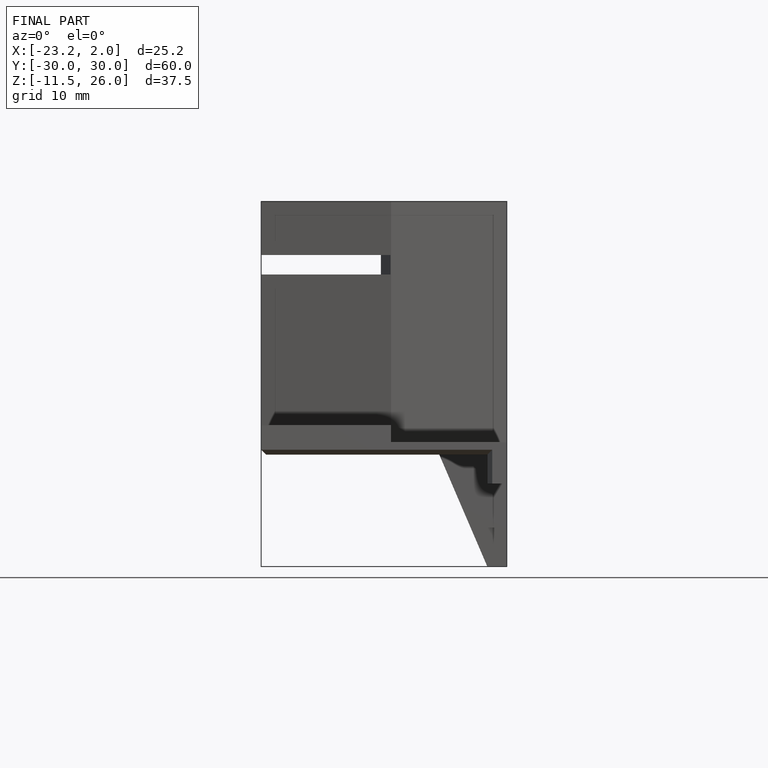
[diagram: finished part — front view with bounding-box wireframe]
